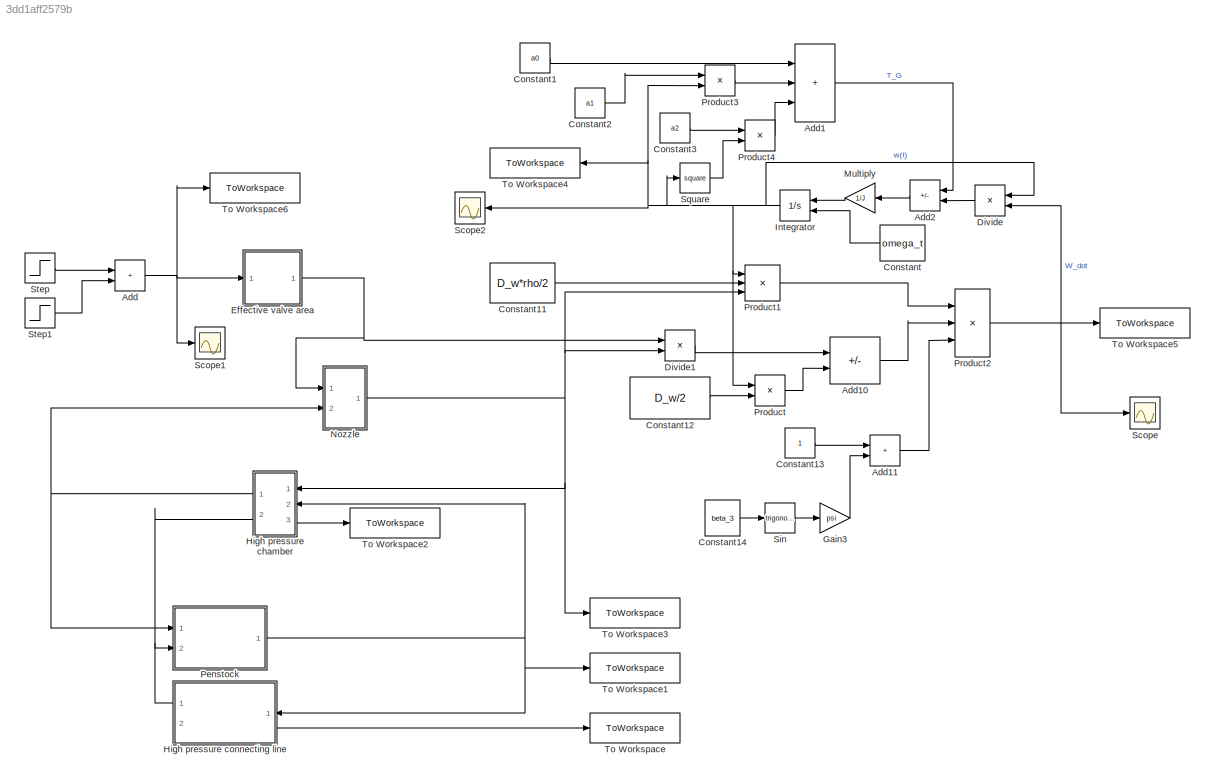
MODEL slx_3dd1aff2579b
KIND model
CONFIG AbsTol = auto
CONFIG EnableMultiTasking = off
CONFIG FixedStep = auto
CONFIG MaxStep = auto
CONFIG MinStep = auto
CONFIG RelTol = 1e-3
CONFIG SampleTimeConstraint = Unconstrained
CONFIG SolverName = VariableStepAuto
CONFIG StartTime = 0
CONFIG StopTime = 140
BLOCK [Sum] Add
  IconShape = rectangular
  Ports = [2, 1]
BLOCK [Sum] Add1
  IconShape = rectangular
  Inputs = +++
  Ports = [3, 1]
BLOCK [Sum] Add10
  IconShape = rectangular
  Inputs = +-
  Ports = [2, 1]
BLOCK [Sum] Add11
  IconShape = rectangular
  Ports = [2, 1]
BLOCK [Sum] Add2
  IconShape = rectangular
  Inputs = -+
  Ports = [2, 1]
BLOCK [Constant] Constant
  Value = omega_t
BLOCK [Constant] Constant1
  Value = a0
BLOCK [Constant] Constant11
  Value = D_w*rho/2
BLOCK [Constant] Constant12
  Value = D_w/2
BLOCK [Constant] Constant13
BLOCK [Constant] Constant14
  Value = beta_3
BLOCK [Constant] Constant2
  Value = a1
BLOCK [Constant] Constant3
  Value = a2
BLOCK [Product] Divide
  Inputs = /*
  Ports = [2, 1]
BLOCK [Product] Divide1
  Inputs = /*
  Ports = [2, 1]
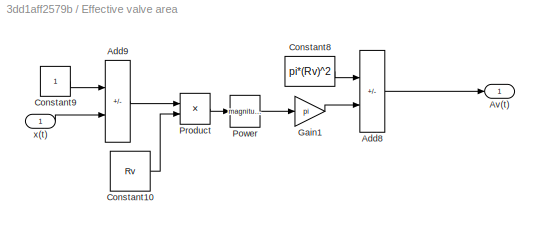
BLOCK [SubSystem] Effective valve area
  Ports = [1, 1]
  RequestExecContextInheritance = off
BLOCK [Sum] Effective valve area/Add8
  IconShape = rectangular
  Inputs = +-
  Ports = [2, 1]
BLOCK [Sum] Effective valve area/Add9
  IconShape = rectangular
  Inputs = +-
  Ports = [2, 1]
BLOCK [Outport] Effective valve area/Av(t)
BLOCK [Constant] Effective valve area/Constant10
  Value = Rv
BLOCK [Constant] Effective valve area/Constant8
  Value = pi*(Rv)^2
BLOCK [Constant] Effective valve area/Constant9
BLOCK [Gain] Effective valve area/Gain1
  Gain = pi
BLOCK [Math] Effective valve area/Power
  Operator = magnitude^2
  Ports = [1, 1]
BLOCK [Product] Effective valve area/Product
  Ports = [2, 1]
BLOCK [Inport] Effective valve area/x(t)
BLOCK [Gain] Gain3
  Gain = psi
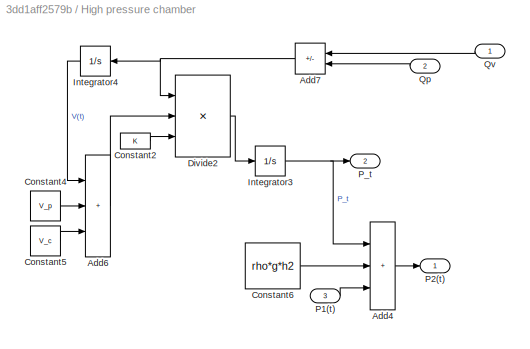
BLOCK [SubSystem] High pressure chamber
  PortSchema = {"entries":[{"content":{"sides":[{"content":{"connectorIds":["In1","In2","Out2"]},"type":"ConnectorPlacement.EquallySpacedRectSide","uuid":"294ea827-fdb7-421d-abcf-acc1f7a75503"},{"content":{"connectorIds":["Out1","In3"],"side":"RIGHT"},"type":"ConnectorPlacement.EquallySpacedRectSide","uuid":"1a834a5b-f580-4f55-8c0d-9c69e06391e8"},{"content":{"connectorIds":[],"side":"TOP"},"type":"ConnectorPlace...<+259ch>
  Ports = [3, 2]
  RequestExecContextInheritance = off
BLOCK [Sum] High pressure chamber/Add4
  IconShape = rectangular
  Inputs = +++
  Ports = [3, 1]
BLOCK [Sum] High pressure chamber/Add6
  IconShape = rectangular
  Inputs = +++
  Ports = [3, 1]
BLOCK [Sum] High pressure chamber/Add7
  IconShape = rectangular
  Inputs = -+
  Ports = [2, 1]
BLOCK [Constant] High pressure chamber/Constant2
  Value = K
BLOCK [Constant] High pressure chamber/Constant4
  Value = V_p
BLOCK [Constant] High pressure chamber/Constant5
  Value = V_c
BLOCK [Constant] High pressure chamber/Constant6
  Value = rho*g*h2
BLOCK [Product] High pressure chamber/Divide2
  Inputs = */*
  Ports = [3, 1]
BLOCK [Integrator] High pressure chamber/Integrator3
  Ports = [1, 1]
BLOCK [Integrator] High pressure chamber/Integrator4
  Ports = [1, 1]
BLOCK [Inport] High pressure chamber/P1(t)
  Port = 3
BLOCK [Outport] High pressure chamber/P2(t)
BLOCK [Outport] High pressure chamber/P_t
  Port = 2
BLOCK [Inport] High pressure chamber/Qp
  Port = 2
BLOCK [Inport] High pressure chamber/Qv
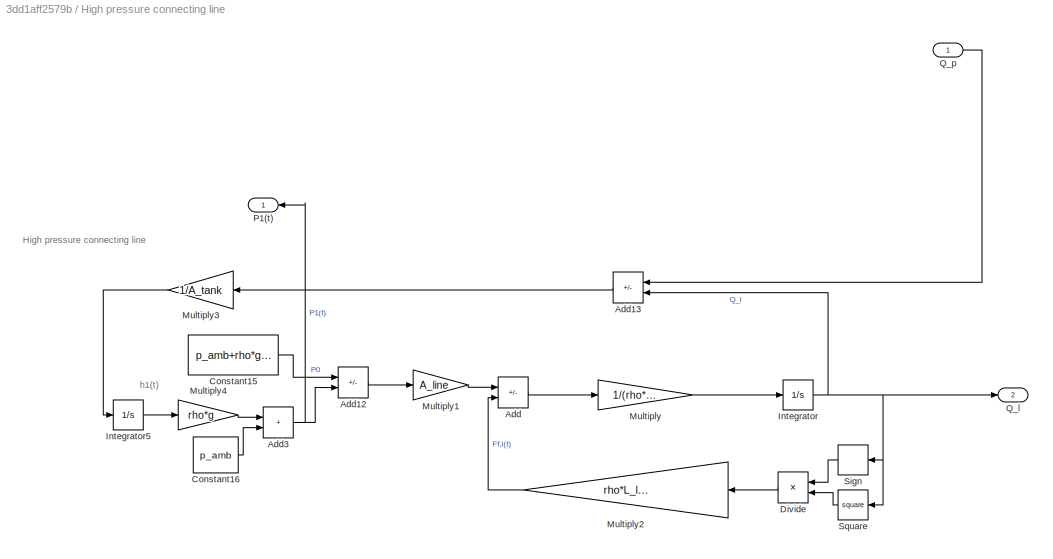
BLOCK [SubSystem] High pressure connecting line
  PortSchema = {"entries":[{"content":{"sides":[{"content":{"connectorIds":["In1","Out2"]},"type":"ConnectorPlacement.EquallySpacedRectSide","uuid":"6ad556de-4b40-4685-9767-8ac44a5f7b94"},{"content":{"connectorIds":["Out1"],"side":"RIGHT"},"type":"ConnectorPlacement.EquallySpacedRectSide","uuid":"0688f997-fb3f-4a41-bc89-421b9c81a19d"},{"content":{"connectorIds":[],"side":"TOP"},"type":"ConnectorPlacement.Equally...<+247ch>
  Ports = [1, 2]
  RequestExecContextInheritance = off
BLOCK [Sum] High pressure connecting line/Add
  IconShape = rectangular
  Inputs = +-
  Ports = [2, 1]
BLOCK [Sum] High pressure connecting line/Add12
  IconShape = rectangular
  Inputs = +-
  Ports = [2, 1]
BLOCK [Sum] High pressure connecting line/Add13
  IconShape = rectangular
  Inputs = -+
  Ports = [2, 1]
BLOCK [Sum] High pressure connecting line/Add3
  IconShape = rectangular
  Ports = [2, 1]
BLOCK [Constant] High pressure connecting line/Constant15
  Value = p_amb+rho*g*h0
BLOCK [Constant] High pressure connecting line/Constant16
  Value = p_amb
BLOCK [Product] High pressure connecting line/Divide
  Inputs = **
  Ports = [2, 1]
BLOCK [Integrator] High pressure connecting line/Integrator
  InitialCondition = 20
  Ports = [1, 1]
BLOCK [Integrator] High pressure connecting line/Integrator5
  InitialCondition = h_tank_0
  Ports = [1, 1]
BLOCK [Gain] High pressure connecting line/Multiply
  Gain = 1/(rho*L_line)
BLOCK [Gain] High pressure connecting line/Multiply1
  Gain = A_line
BLOCK [Gain] High pressure connecting line/Multiply2
  Gain = rho*L_line*lambda/(2*A_line*D_line)
BLOCK [Gain] High pressure connecting line/Multiply3
  Gain = 1/A_tank
BLOCK [Gain] High pressure connecting line/Multiply4
  Gain = rho*g
BLOCK [Outport] High pressure connecting line/P1(t)
BLOCK [Outport] High pressure connecting line/Q_l
  Port = 2
BLOCK [Inport] High pressure connecting line/Q_p
BLOCK [Signum] High pressure connecting line/Sign
BLOCK [Math] High pressure connecting line/Square
  Operator = square
  Ports = [1, 1]
BLOCK [Integrator] Integrator
  InitialConditionSource = external
  Ports = [2, 1]
BLOCK [Gain] Multiply
  Gain = 1/J
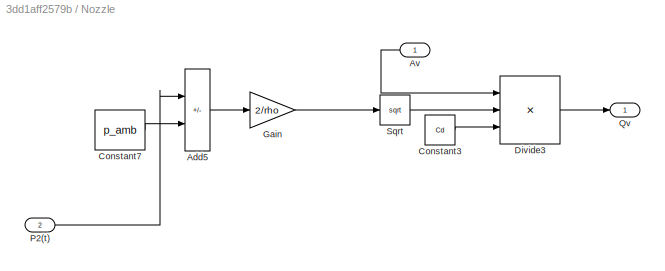
BLOCK [SubSystem] Nozzle
  Ports = [2, 1]
  RequestExecContextInheritance = off
BLOCK [Sum] Nozzle/Add5
  IconShape = rectangular
  Inputs = +-
  Ports = [2, 1]
BLOCK [Inport] Nozzle/Av
BLOCK [Constant] Nozzle/Constant3
  Value = Cd
BLOCK [Constant] Nozzle/Constant7
  Value = p_amb
BLOCK [Product] Nozzle/Divide3
  Inputs = ***
  Ports = [3, 1]
BLOCK [Gain] Nozzle/Gain
  Gain = 2/rho
BLOCK [Inport] Nozzle/P2(t)
  Port = 2
BLOCK [Outport] Nozzle/Qv
BLOCK [Sqrt] Nozzle/Sqrt
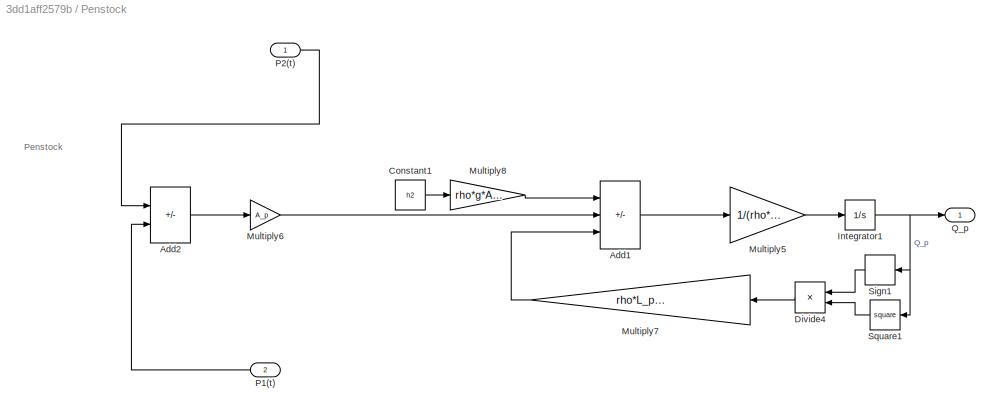
BLOCK [SubSystem] Penstock
  Ports = [2, 1]
  RequestExecContextInheritance = off
BLOCK [Sum] Penstock/Add1
  IconShape = rectangular
  Inputs = ++-
  Ports = [3, 1]
BLOCK [Sum] Penstock/Add2
  IconShape = rectangular
  Inputs = -+
  Ports = [2, 1]
BLOCK [Constant] Penstock/Constant1
  Value = h2
BLOCK [Product] Penstock/Divide4
  Inputs = **
  Ports = [2, 1]
BLOCK [Integrator] Penstock/Integrator1
  InitialCondition = 20
  Ports = [1, 1]
BLOCK [Gain] Penstock/Multiply5
  Gain = 1/(rho*L_p)
BLOCK [Gain] Penstock/Multiply6
  Gain = A_p
BLOCK [Gain] Penstock/Multiply7
  Gain = rho*L_p*lambda_p/(2*A_p*D_p)
BLOCK [Gain] Penstock/Multiply8
  Gain = rho*g*A_p
BLOCK [Inport] Penstock/P1(t)
  Port = 2
BLOCK [Inport] Penstock/P2(t)
BLOCK [Outport] Penstock/Q_p
BLOCK [Signum] Penstock/Sign1
BLOCK [Math] Penstock/Square1
  Operator = square
  Ports = [1, 1]
BLOCK [Product] Product
  Ports = [2, 1]
BLOCK [Product] Product1
  Inputs = 3
  Ports = [3, 1]
BLOCK [Product] Product2
  Inputs = 3
  Ports = [3, 1]
BLOCK [Product] Product3
  Ports = [2, 1]
BLOCK [Product] Product4
  Ports = [2, 1]
BLOCK [Scope] Scope
  Floating = off
  NumInputPorts = 1
  Ports = [1]
  ScopeSpecificationString = Simulink.scopes.TimeScopeBlockCfg('CurrentConfiguration', extmgr.ConfigurationSet(extmgr.Configuration('Core','General UI',true),extmgr.Configuration('Core','Source UI',true),extmgr.Configuration('Sources','WiredSimulink',true),extmgr.Configuration('Visuals','Time Domain',true,'SerializedDisplays',{struct('MinYLimReal','-18692544.25443','MaxYLimReal','229237450.32146','YLabelReal','','MinYLimMag',...<+1416ch>
BLOCK [Scope] Scope1
  Floating = off
  NumInputPorts = 1
  Ports = [1]
  ScopeSpecificationString = Simulink.scopes.TimeScopeBlockCfg('CurrentConfiguration', extmgr.ConfigurationSet(extmgr.Configuration('Core','General UI',true),extmgr.Configuration('Core','Source UI',true),extmgr.Configuration('Sources','WiredSimulink',true,'DataLoggingVariableName','ScopeData1'),extmgr.Configuration('Visuals','Time Domain',true,'SerializedDisplays',{struct('MinYLimReal','0.0125','MaxYLimReal','0.8875','YLabelR...<+1352ch>
BLOCK [Scope] Scope2
  Floating = off
  NumInputPorts = 1
  Ports = [1]
  ScopeSpecificationString = Simulink.scopes.TimeScopeBlockCfg('CurrentConfiguration', extmgr.ConfigurationSet(extmgr.Configuration('Core','General UI',true),extmgr.Configuration('Core','Source UI',true),extmgr.Configuration('Sources','WiredSimulink',true,'DataLoggingVariableName','ScopeData2'),extmgr.Configuration('Visuals','Time Domain',true,'SerializedDisplays',{struct('MinYLimReal','7.74955','MaxYLimReal','23.24994','YLab...<+1398ch>
BLOCK [Trigonometry] Sin
  Ports = [1, 1]
BLOCK [Math] Square
  Operator = square
  Ports = [1, 1]
BLOCK [Step] Step
  After = 0.8
  Before = x_v
  SampleTime = 0
  Time = 20
BLOCK [Step] Step1
  After = -0.7
  SampleTime = 0
  Time = 100
BLOCK [ToWorkspace] To Workspace
  FixptAsFi = on
  MaxDataPoints = inf
  Ports = [1]
  SampleTime = -1
  VariableName = Q_l
BLOCK [ToWorkspace] To Workspace1
  FixptAsFi = on
  MaxDataPoints = inf
  Ports = [1]
  SampleTime = -1
  VariableName = Q_p
BLOCK [ToWorkspace] To Workspace2
  FixptAsFi = on
  MaxDataPoints = inf
  Ports = [1]
  SampleTime = -1
  VariableName = p_t
BLOCK [ToWorkspace] To Workspace3
  FixptAsFi = on
  MaxDataPoints = inf
  Ports = [1]
  SampleTime = -1
  VariableName = Q_v
BLOCK [ToWorkspace] To Workspace4
  FixptAsFi = on
  MaxDataPoints = inf
  Ports = [1]
  SampleTime = -1
  SaveFormat = Timeseries
  VariableName = wt
BLOCK [ToWorkspace] To Workspace5
  FixptAsFi = on
  MaxDataPoints = inf
  Ports = [1]
  SampleTime = -1
  SaveFormat = Timeseries
  VariableName = w_dot
BLOCK [ToWorkspace] To Workspace6
  FixptAsFi = on
  MaxDataPoints = inf
  Ports = [1]
  SampleTime = -1
  SaveFormat = Timeseries
  VariableName = xt
ANNOTATION High pressure connecting line: High pressure connecting line
ANNOTATION High pressure connecting line: h1(t)
ANNOTATION Penstock: Penstock
LINE Add10:1 -> Product2:2
LINE Add11:1 -> Product2:3
LINE Add1:1 -> Add2:1
LINE Add2:1 -> Multiply:1
NET Add:1 -> Effective valve area:1, Scope1:1, To Workspace6:1
LINE Constant11:1 -> Product1:2
LINE Constant12:1 -> Product:2
LINE Constant13:1 -> Add11:1
LINE Constant14:1 -> Sin:1
LINE Constant1:1 -> Add1:1
LINE Constant2:1 -> Product3:1
LINE Constant3:1 -> Product4:1
LINE Constant:1 -> Integrator:2
LINE Divide1:1 -> Add10:1
LINE Divide:1 -> Add2:2
LINE Effective valve area/Add8:1 -> Effective valve area/Av(t):1
LINE Effective valve area/Add9:1 -> Effective valve area/Product:1
LINE Effective valve area/Constant10:1 -> Effective valve area/Product:2
LINE Effective valve area/Constant8:1 -> Effective valve area/Add8:1
LINE Effective valve area/Constant9:1 -> Effective valve area/Add9:1
LINE Effective valve area/Gain1:1 -> Effective valve area/Add8:2
LINE Effective valve area/Power:1 -> Effective valve area/Gain1:1
LINE Effective valve area/Product:1 -> Effective valve area/Power:1
LINE Effective valve area/x(t):1 -> Effective valve area/Add9:2
NET Effective valve area:1 -> Divide1:1, Nozzle:1
LINE Gain3:1 -> Add11:2
LINE High pressure chamber/Add4:1 -> High pressure chamber/P2(t):1
LINE High pressure chamber/Add6:1 -> High pressure chamber/Divide2:2
NET High pressure chamber/Add7:1 -> High pressure chamber/Divide2:1, High pressure chamber/Integrator4:1
LINE High pressure chamber/Constant2:1 -> High pressure chamber/Divide2:3
LINE High pressure chamber/Constant4:1 -> High pressure chamber/Add6:2
LINE High pressure chamber/Constant5:1 -> High pressure chamber/Add6:3
LINE High pressure chamber/Constant6:1 -> High pressure chamber/Add4:2
LINE High pressure chamber/Divide2:1 -> High pressure chamber/Integrator3:1
NET High pressure chamber/Integrator3:1 -> High pressure chamber/Add4:1, High pressure chamber/P_t:1
LINE High pressure chamber/Integrator4:1 -> High pressure chamber/Add6:1
LINE High pressure chamber/P1(t):1 -> High pressure chamber/Add4:3
LINE High pressure chamber/Qp:1 -> High pressure chamber/Add7:2
LINE High pressure chamber/Qv:1 -> High pressure chamber/Add7:1
NET High pressure chamber:1 -> Nozzle:2, Penstock:1
LINE High pressure chamber:2 -> To Workspace2:1
LINE High pressure connecting line/Add12:1 -> High pressure connecting line/Multiply1:1
LINE High pressure connecting line/Add13:1 -> High pressure connecting line/Multiply3:1
NET High pressure connecting line/Add3:1 -> High pressure connecting line/Add12:2, High pressure connecting line/P1(t):1
LINE High pressure connecting line/Add:1 -> High pressure connecting line/Multiply:1
LINE High pressure connecting line/Constant15:1 -> High pressure connecting line/Add12:1
LINE High pressure connecting line/Constant16:1 -> High pressure connecting line/Add3:2
LINE High pressure connecting line/Divide:1 -> High pressure connecting line/Multiply2:1
LINE High pressure connecting line/Integrator5:1 -> High pressure connecting line/Multiply4:1
NET High pressure connecting line/Integrator:1 -> High pressure connecting line/Add13:2, High pressure connecting line/Q_l:1, High pressure connecting line/Sign:1, High pressure connecting line/Square:1
LINE High pressure connecting line/Multiply1:1 -> High pressure connecting line/Add:1
LINE High pressure connecting line/Multiply2:1 -> High pressure connecting line/Add:2
LINE High pressure connecting line/Multiply3:1 -> High pressure connecting line/Integrator5:1
LINE High pressure connecting line/Multiply4:1 -> High pressure connecting line/Add3:1
LINE High pressure connecting line/Multiply:1 -> High pressure connecting line/Integrator:1
LINE High pressure connecting line/Q_p:1 -> High pressure connecting line/Add13:1
LINE High pressure connecting line/Sign:1 -> High pressure connecting line/Divide:1
LINE High pressure connecting line/Square:1 -> High pressure connecting line/Divide:2
NET High pressure connecting line:1 -> High pressure chamber:3, Penstock:2
LINE High pressure connecting line:2 -> To Workspace:1
NET Integrator:1 -> Divide:1, Product1:1, Product3:2, Product:1, Scope2:1, Square:1, To Workspace4:1
LINE Multiply:1 -> Integrator:1
LINE Nozzle/Add5:1 -> Nozzle/Gain:1
LINE Nozzle/Av:1 -> Nozzle/Divide3:1
LINE Nozzle/Constant3:1 -> Nozzle/Divide3:3
LINE Nozzle/Constant7:1 -> Nozzle/Add5:2
LINE Nozzle/Divide3:1 -> Nozzle/Qv:1
LINE Nozzle/Gain:1 -> Nozzle/Sqrt:1
LINE Nozzle/P2(t):1 -> Nozzle/Add5:1
LINE Nozzle/Sqrt:1 -> Nozzle/Divide3:2
NET Nozzle:1 -> Divide1:2, High pressure chamber:1, Product1:3, To Workspace3:1
LINE Penstock/Add1:1 -> Penstock/Multiply5:1
LINE Penstock/Add2:1 -> Penstock/Multiply6:1
LINE Penstock/Constant1:1 -> Penstock/Multiply8:1
LINE Penstock/Divide4:1 -> Penstock/Multiply7:1
NET Penstock/Integrator1:1 -> Penstock/Q_p:1, Penstock/Sign1:1, Penstock/Square1:1
LINE Penstock/Multiply5:1 -> Penstock/Integrator1:1
LINE Penstock/Multiply6:1 -> Penstock/Add1:2
LINE Penstock/Multiply7:1 -> Penstock/Add1:3
LINE Penstock/Multiply8:1 -> Penstock/Add1:1
LINE Penstock/P1(t):1 -> Penstock/Add2:2
LINE Penstock/P2(t):1 -> Penstock/Add2:1
LINE Penstock/Sign1:1 -> Penstock/Divide4:1
LINE Penstock/Square1:1 -> Penstock/Divide4:2
NET Penstock:1 -> High pressure chamber:2, High pressure connecting line:1, To Workspace1:1
LINE Product1:1 -> Product2:1
NET Product2:1 -> Divide:2, Scope:1, To Workspace5:1
LINE Product3:1 -> Add1:2
LINE Product4:1 -> Add1:3
LINE Product:1 -> Add10:2
LINE Sin:1 -> Gain3:1
LINE Square:1 -> Product4:2
LINE Step1:1 -> Add:2
LINE Step:1 -> Add:1
note: NET lines group one-source signal fan-out (src -> all destinations, sorted); 1:1 wires keep LINE
